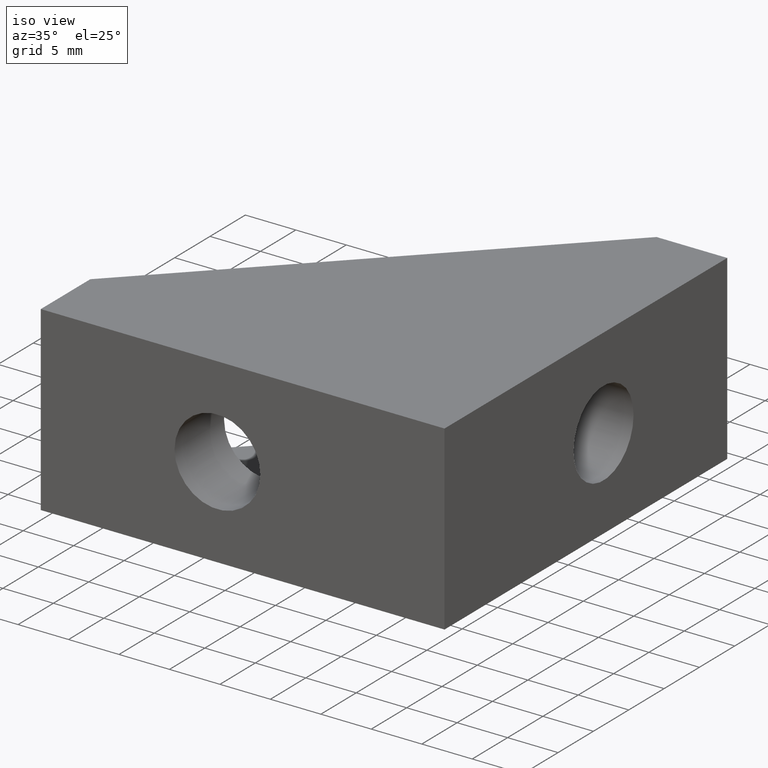
[diagram: clean part render]
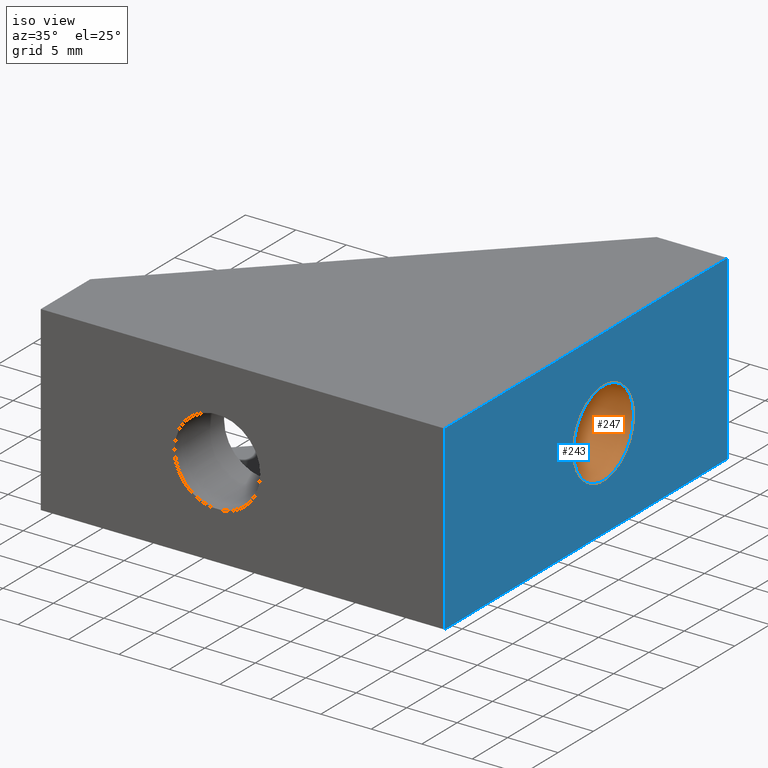
[diagram: same view with the hole feature highlighted: cylindrical wall and planar end face, labeled with their STEP entity ids]
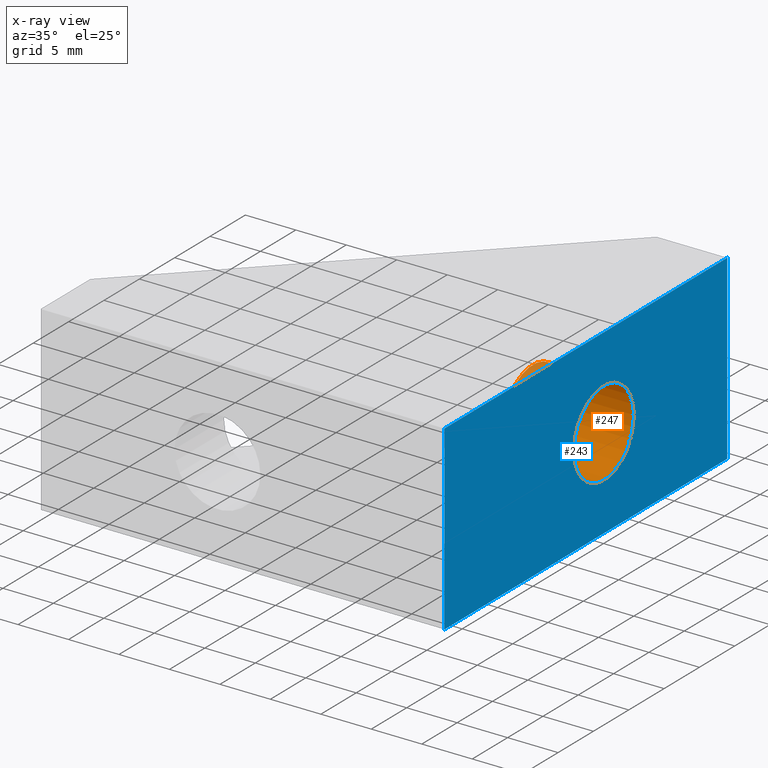
[diagram: x-ray of the same camera — body ghosted, the hole faces saturated]
A machine part, iso view. The highlighted faces form one hole feature of diameter 8.5 mm: the cylindrical wall (entity #247, orange) and its adjacent planar end face (entity #243, blue) — they share a circular edge in the B-rep.
The next image is the same camera in x-ray (body ghosted, the hole faces saturated) — the bore reads through the body.
Wall:
#15=CYLINDRICAL_SURFACE('',#267,4.25);
#21=FACE_BOUND('',#58,.T.);
#23=CIRCLE('',#252,4.25);
#25=CIRCLE('',#262,4.25);
#39=FACE_OUTER_BOUND('',#57,.T.);
#57=EDGE_LOOP('',(#219));
#58=EDGE_LOOP('',(#220));
#117=VERTEX_POINT('',#343);
#131=VERTEX_POINT('',#388);
#137=EDGE_CURVE('',#117,#117,#23,.T.);
#160=EDGE_CURVE('',#131,#131,#25,.T.);
#219=ORIENTED_EDGE('',*,*,#137,.F.);
#220=ORIENTED_EDGE('',*,*,#160,.T.);
#247=ADVANCED_FACE('',(#39,#21),#15,.F.);
#252=AXIS2_PLACEMENT_3D('',#344,#277,#278);
#262=AXIS2_PLACEMENT_3D('',#389,#318,#319);
#267=AXIS2_PLACEMENT_3D('',#396,#329,#330);
#277=DIRECTION('center_axis',(1.,0.,0.));
#278=DIRECTION('ref_axis',(0.,1.,0.));
#318=DIRECTION('center_axis',(1.,0.,0.));
#319=DIRECTION('ref_axis',(0.,1.,0.));
#329=DIRECTION('center_axis',(1.,0.,0.));
#330=DIRECTION('ref_axis',(0.,1.,0.));
#343=CARTESIAN_POINT('',(-6.99999999997181,-4.25,0.));
#344=CARTESIAN_POINT('Origin',(-6.99999999997181,0.,0.));
#388=CARTESIAN_POINT('',(0.,-4.25,0.));
#389=CARTESIAN_POINT('Origin',(0.,0.,0.));
#396=CARTESIAN_POINT('Origin',(0.,0.,0.));
End face:
#19=FACE_BOUND('',#52,.T.);
#25=CIRCLE('',#262,4.25);
#35=FACE_OUTER_BOUND('',#51,.T.);
#51=EDGE_LOOP('',(#197,#198,#199,#200));
#52=EDGE_LOOP('',(#201));
#74=LINE('',#367,#100);
#82=LINE('',#383,#108);
#84=LINE('',#386,#110);
#85=LINE('',#387,#111);
#100=VECTOR('',#298,39.9999999998399);
#108=VECTOR('',#312,39.9999999998399);
#110=VECTOR('',#316,18.);
#111=VECTOR('',#317,18.);
#124=VERTEX_POINT('',#364);
#125=VERTEX_POINT('',#366);
#129=VERTEX_POINT('',#380);
#130=VERTEX_POINT('',#382);
#131=VERTEX_POINT('',#388);
#148=EDGE_CURVE('',#124,#125,#74,.T.);
#156=EDGE_CURVE('',#130,#129,#82,.T.);
#158=EDGE_CURVE('',#130,#124,#84,.T.);
#159=EDGE_CURVE('',#129,#125,#85,.T.);
#160=EDGE_CURVE('',#131,#131,#25,.T.);
#197=ORIENTED_EDGE('',*,*,#148,.F.);
#198=ORIENTED_EDGE('',*,*,#158,.F.);
#199=ORIENTED_EDGE('',*,*,#156,.T.);
#200=ORIENTED_EDGE('',*,*,#159,.T.);
#201=ORIENTED_EDGE('',*,*,#160,.F.);
#231=PLANE('',#261);
#243=ADVANCED_FACE('',(#35,#19),#231,.T.);
#261=AXIS2_PLACEMENT_3D('',#385,#314,#315);
#262=AXIS2_PLACEMENT_3D('',#389,#318,#319);
#298=DIRECTION('',(0.,1.,0.));
#312=DIRECTION('',(0.,1.,0.));
#314=DIRECTION('center_axis',(1.,0.,0.));
#315=DIRECTION('ref_axis',(0.,0.,-1.));
#316=DIRECTION('',(0.,0.,1.));
#317=DIRECTION('',(0.,0.,1.));
#318=DIRECTION('center_axis',(1.,0.,0.));
#319=DIRECTION('ref_axis',(0.,1.,0.));
#364=CARTESIAN_POINT('',(0.,-22.49999999991,9.00000000003593));
#366=CARTESIAN_POINT('',(0.,17.49999999993,9.00000000003593));
#367=CARTESIAN_POINT('',(0.,-22.49999999991,9.00000000003593));
#380=CARTESIAN_POINT('',(0.,17.49999999993,-8.99999999996408));
#382=CARTESIAN_POINT('',(0.,-22.49999999991,-8.99999999996408));
#383=CARTESIAN_POINT('',(0.,-22.49999999991,-8.99999999996408));
#385=CARTESIAN_POINT('Origin',(0.,-22.5000433069972,-9.00004330705133));
#386=CARTESIAN_POINT('',(0.,-22.49999999991,-8.99999999996408));
#387=CARTESIAN_POINT('',(0.,17.49999999993,-8.99999999996408));
#388=CARTESIAN_POINT('',(0.,-4.25,0.));
#389=CARTESIAN_POINT('Origin',(0.,0.,0.));